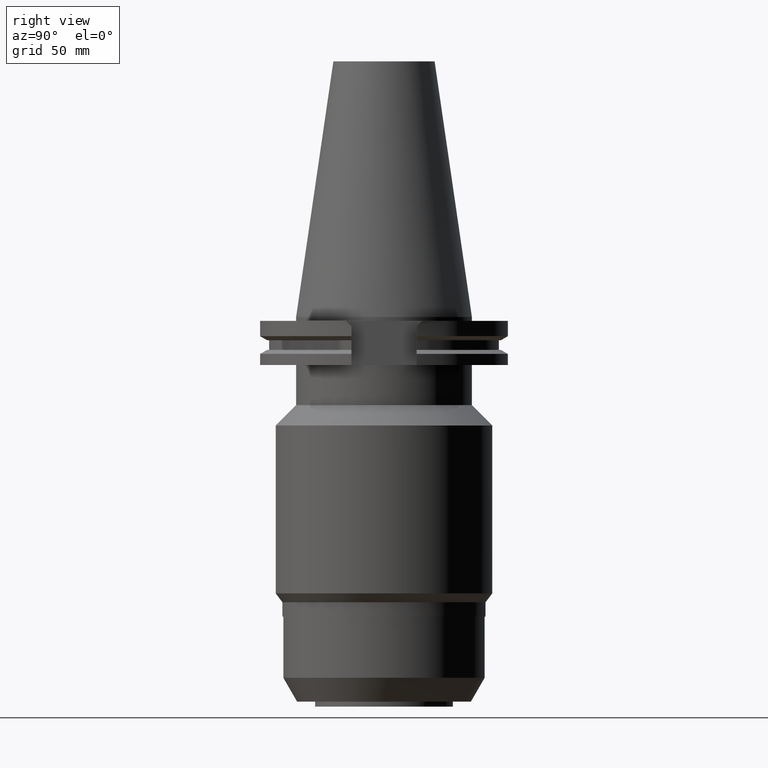
[diagram: clean part render]
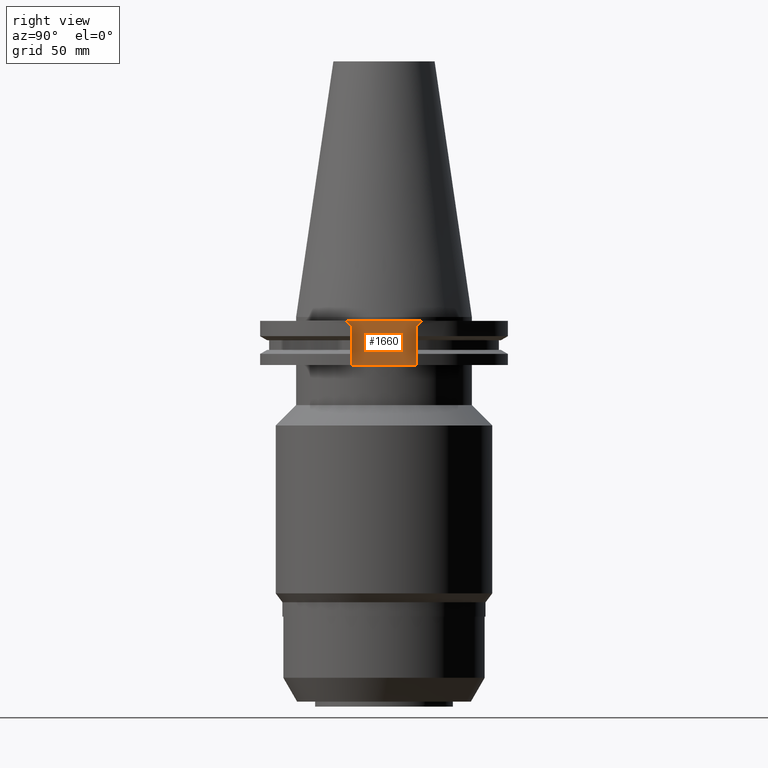
[diagram: same view with one face highlighted and labeled with its STEP entity id]
A machine part, right view. The second image highlights one B-rep face of the part: STEP entity #1660.
In plain terms, the highlighted planar face has unit normal (1, 0, 0).
Its self-contained STEP definition (entity closure, byte-faithful):
#94=DIRECTION('',(0.E0,-1.E0,0.E0));
#95=VECTOR('',#94,3.031E1);
#96=CARTESIAN_POINT('',(3.527E1,1.5155E1,-1.5E0));
#97=LINE('',#96,#95);
#170=DIRECTION('',(0.E0,-1.E0,0.E0));
#171=VECTOR('',#170,2.591E1);
#172=CARTESIAN_POINT('',(3.527E1,1.2955E1,-1.905E1));
#173=LINE('',#172,#171);
#177=DIRECTION('',(0.E0,0.E0,1.E0));
#178=VECTOR('',#177,1.535E1);
#179=CARTESIAN_POINT('',(3.527E1,-1.2955E1,-1.905E1));
#180=LINE('',#179,#178);
#184=DIRECTION('',(0.E0,-7.071067811865E-1,7.071067811865E-1));
#185=VECTOR('',#184,3.111269837221E0);
#186=CARTESIAN_POINT('',(3.527E1,-1.2955E1,-3.7E0));
#187=LINE('',#186,#185);
#191=DIRECTION('',(0.E0,-7.071067811865E-1,-7.071067811865E-1));
#192=VECTOR('',#191,3.111269837221E0);
#193=CARTESIAN_POINT('',(3.527E1,1.5155E1,-1.5E0));
#194=LINE('',#193,#192);
#198=DIRECTION('',(0.E0,0.E0,-1.E0));
#199=VECTOR('',#198,1.535E1);
#200=CARTESIAN_POINT('',(3.527E1,1.2955E1,-3.7E0));
#201=LINE('',#200,#199);
#1402=CARTESIAN_POINT('',(3.527E1,1.2955E1,-1.905E1));
#1403=CARTESIAN_POINT('',(3.527E1,-1.2955E1,-1.905E1));
#1404=VERTEX_POINT('',#1402);
#1405=VERTEX_POINT('',#1403);
#1422=CARTESIAN_POINT('',(3.527E1,-1.2955E1,-3.7E0));
#1423=VERTEX_POINT('',#1422);
#1424=CARTESIAN_POINT('',(3.527E1,-1.5155E1,-1.5E0));
#1425=VERTEX_POINT('',#1424);
#1426=CARTESIAN_POINT('',(3.527E1,1.5155E1,-1.5E0));
#1427=VERTEX_POINT('',#1426);
#1428=CARTESIAN_POINT('',(3.527E1,1.2955E1,-3.7E0));
#1429=VERTEX_POINT('',#1428);
#1642=CARTESIAN_POINT('',(3.527E1,0.E0,0.E0));
#1643=DIRECTION('',(1.E0,0.E0,0.E0));
#1644=DIRECTION('',(0.E0,0.E0,-1.E0));
#1645=AXIS2_PLACEMENT_3D('',#1642,#1643,#1644);
#1646=PLANE('',#1645);
#1648=ORIENTED_EDGE('',*,*,#1647,.T.);
#1650=ORIENTED_EDGE('',*,*,#1649,.T.);
#1652=ORIENTED_EDGE('',*,*,#1651,.T.);
#1653=ORIENTED_EDGE('',*,*,#1615,.F.);
#1655=ORIENTED_EDGE('',*,*,#1654,.T.);
#1657=ORIENTED_EDGE('',*,*,#1656,.T.);
#1658=EDGE_LOOP('',(#1648,#1650,#1652,#1653,#1655,#1657));
#1659=FACE_OUTER_BOUND('',#1658,.F.);
#1615=EDGE_CURVE('',#1427,#1425,#97,.T.);
#1647=EDGE_CURVE('',#1404,#1405,#173,.T.);
#1649=EDGE_CURVE('',#1405,#1423,#180,.T.);
#1651=EDGE_CURVE('',#1423,#1425,#187,.T.);
#1654=EDGE_CURVE('',#1427,#1429,#194,.T.);
#1656=EDGE_CURVE('',#1429,#1404,#201,.T.);
#1660=ADVANCED_FACE('',(#1659),#1646,.T.);